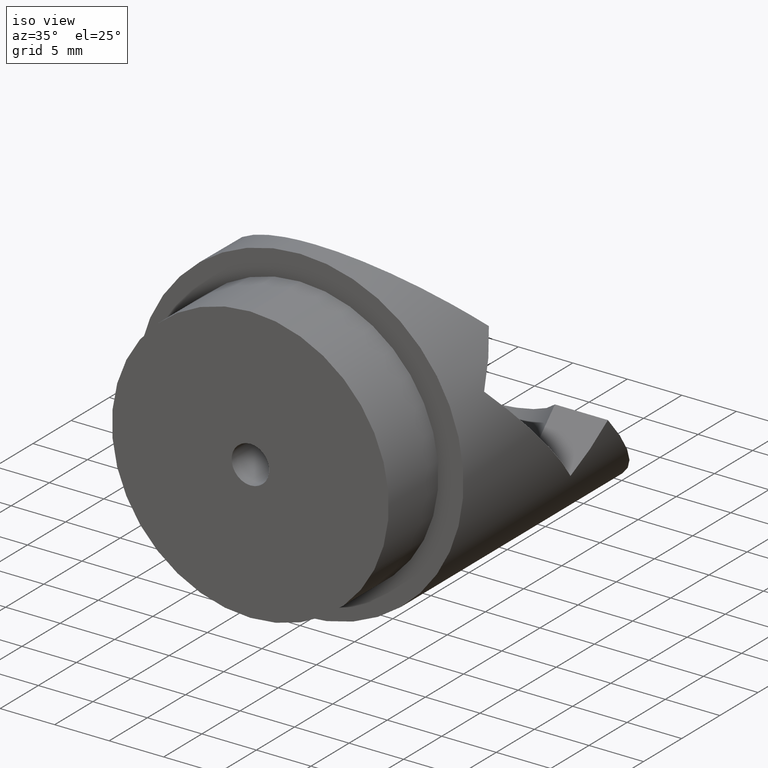
[diagram: clean part render]
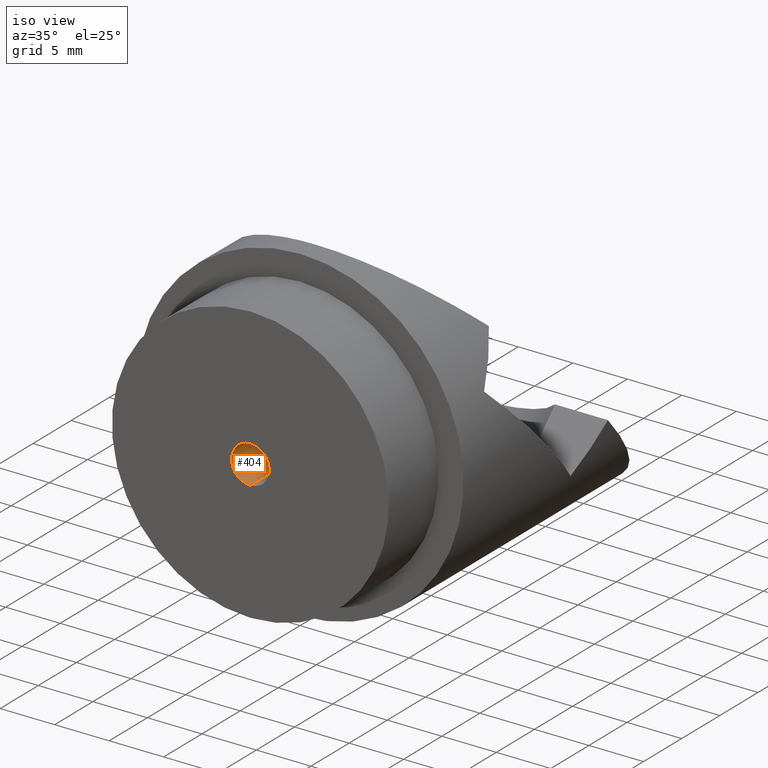
[diagram: same view with one face highlighted and labeled with its STEP entity id]
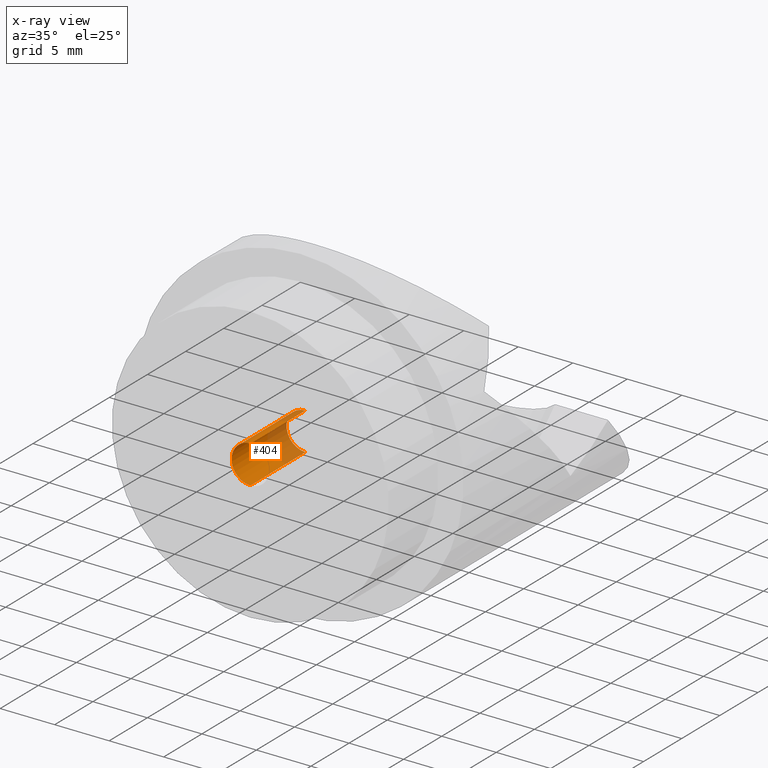
[diagram: x-ray of the same camera — body ghosted, the highlighted face saturated]
A machine part, iso view. The second image highlights one B-rep face of the part: STEP entity #404.
The next image is the same camera in x-ray: the body ghosted, the highlighted face saturated — about 34% of this face is hidden behind the body in this view.
In plain terms, the highlighted cylindrical surface (edge-blend (fillet) strip) has radius 1.7272 mm, axis along (-0, -1, -0).
Its self-contained STEP definition (entity closure, byte-faithful):
#20 = CIRCLE ( 'NONE', #34, 1.727199999999999600 ) ;
#21 = CARTESIAN_POINT ( 'NONE',  ( 2.115209951487307000E-016, -6.499999999999999100, 1.727199999999998700 ) ) ;
#28 = VERTEX_POINT ( 'NONE', #168 ) ;
#34 = AXIS2_PLACEMENT_3D ( 'NONE', #926, #920, #622 ) ;
#51 = ORIENTED_EDGE ( 'NONE', *, *, #688, .T. ) ;
#62 = VERTEX_POINT ( 'NONE', #554 ) ;
#148 = AXIS2_PLACEMENT_3D ( 'NONE', #635, #712, #642 ) ;
#168 = CARTESIAN_POINT ( 'NONE',  ( 2.115209951487308000E-016, -6.499999999999999100, 1.727199999999999600 ) ) ;
#181 = CARTESIAN_POINT ( 'NONE',  ( 0.0000000000000000000, -6.499999999999999100, -1.727199999999998700 ) ) ;
#187 = CARTESIAN_POINT ( 'NONE',  ( 0.0000000000000000000, 0.7000000000000018400, -1.727199999999998100 ) ) ;
#195 = EDGE_CURVE ( 'NONE', #62, #476, #534, .T. ) ;
#200 = VECTOR ( 'NONE', #249, 1000.000000000000000 ) ;
#249 = DIRECTION ( 'NONE',  ( -0.0000000000000000000, -1.000000000000000000, -0.0000000000000000000 ) ) ;
#272 = EDGE_LOOP ( 'NONE', ( #286, #876, #51, #359 ) ) ;
#286 = ORIENTED_EDGE ( 'NONE', *, *, #195, .F. ) ;
#359 = ORIENTED_EDGE ( 'NONE', *, *, #1008, .F. ) ;
#404 = ADVANCED_FACE ( 'NONE', ( #438 ), #632, .F. ) ;
#438 = FACE_OUTER_BOUND ( 'NONE', #272, .T. ) ;
#475 = LINE ( 'NONE', #181, #200 ) ;
#476 = VERTEX_POINT ( 'NONE', #187 ) ;
#534 = CIRCLE ( 'NONE', #997, 1.727199999999998100 ) ;
#551 = DIRECTION ( 'NONE',  ( -0.0000000000000000000, -1.000000000000000000, -0.0000000000000000000 ) ) ;
#554 = CARTESIAN_POINT ( 'NONE',  ( 2.115209951487306000E-016, 0.7000000000000018400, 1.727199999999998100 ) ) ;
#587 = VECTOR ( 'NONE', #551, 1000.000000000000000 ) ;
#589 = CARTESIAN_POINT ( 'NONE',  ( 0.0000000000000000000, -6.499999999999999100, -1.727199999999999600 ) ) ;
#622 = DIRECTION ( 'NONE',  ( 0.0000000000000000000, 0.0000000000000000000, -1.000000000000000000 ) ) ;
#632 = CYLINDRICAL_SURFACE ( 'NONE', #148, 1.727199999999998700 ) ;
#635 = CARTESIAN_POINT ( 'NONE',  ( 0.0000000000000000000, -6.499999999999999100, 0.0000000000000000000 ) ) ;
#642 = DIRECTION ( 'NONE',  ( 0.0000000000000000000, 0.0000000000000000000, -1.000000000000000000 ) ) ;
#688 = EDGE_CURVE ( 'NONE', #28, #962, #20, .T. ) ;
#712 = DIRECTION ( 'NONE',  ( -0.0000000000000000000, -1.000000000000000000, -0.0000000000000000000 ) ) ;
#739 = DIRECTION ( 'NONE',  ( -0.0000000000000000000, -1.000000000000000000, -0.0000000000000000000 ) ) ;
#780 = LINE ( 'NONE', #21, #587 ) ;
#867 = DIRECTION ( 'NONE',  ( 0.0000000000000000000, 0.0000000000000000000, -1.000000000000000000 ) ) ;
#868 = EDGE_CURVE ( 'NONE', #62, #28, #780, .T. ) ;
#876 = ORIENTED_EDGE ( 'NONE', *, *, #868, .T. ) ;
#920 = DIRECTION ( 'NONE',  ( -0.0000000000000000000, -1.000000000000000000, -0.0000000000000000000 ) ) ;
#926 = CARTESIAN_POINT ( 'NONE',  ( 0.0000000000000000000, -6.499999999999999100, 0.0000000000000000000 ) ) ;
#961 = CARTESIAN_POINT ( 'NONE',  ( 0.0000000000000000000, 0.7000000000000018400, 0.0000000000000000000 ) ) ;
#962 = VERTEX_POINT ( 'NONE', #589 ) ;
#997 = AXIS2_PLACEMENT_3D ( 'NONE', #961, #739, #867 ) ;
#1008 = EDGE_CURVE ( 'NONE', #476, #962, #475, .T. ) ;